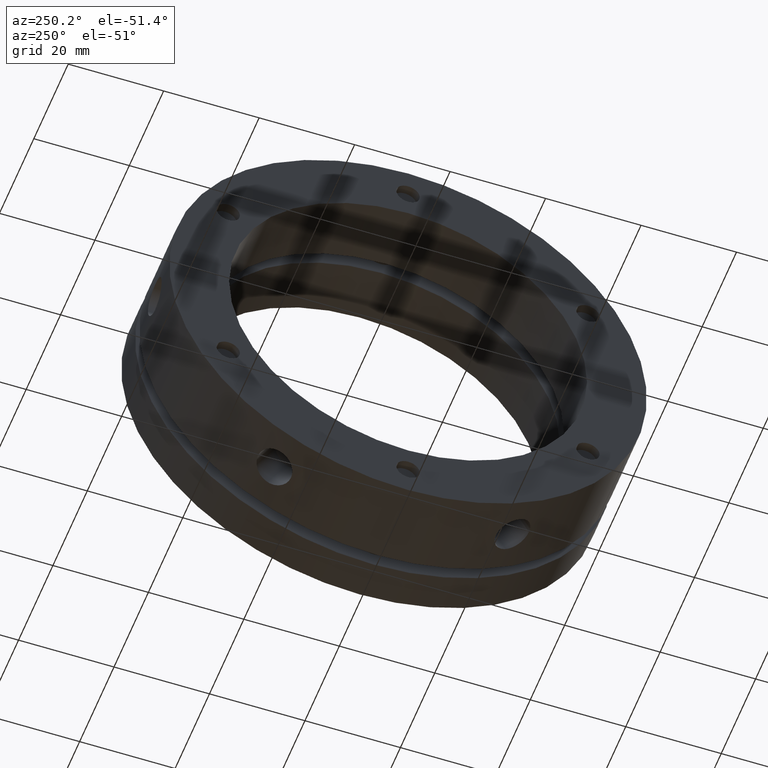
[diagram: clean part render]
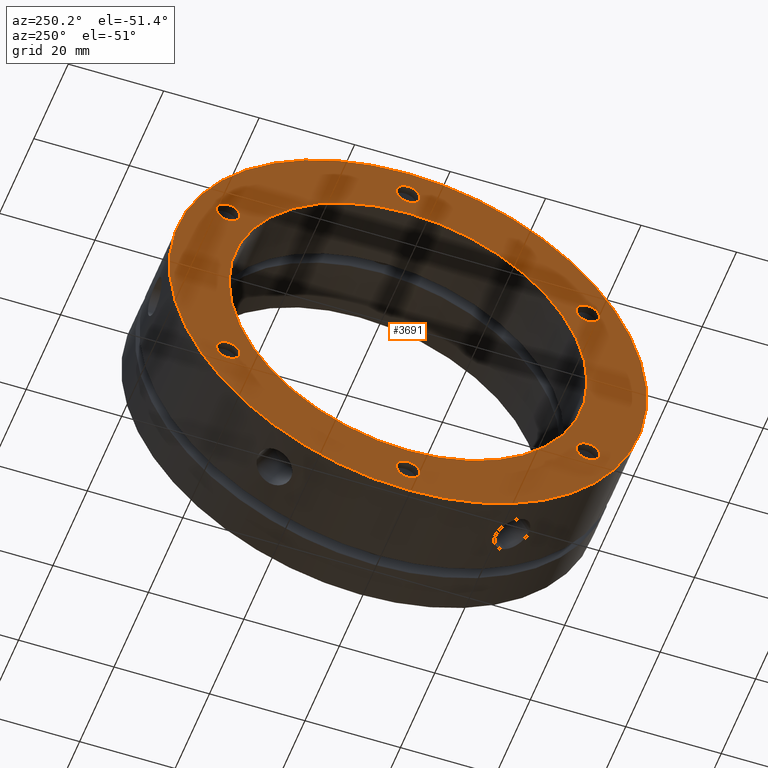
[diagram: same view with one face highlighted and labeled with its STEP entity id]
A machine part, auxiliary view. The second image highlights one B-rep face of the part: STEP entity #3691.
In plain terms, the highlighted planar face has unit normal (-1, 0, 0).
Its self-contained STEP definition (entity closure, byte-faithful):
#94 = EDGE_LOOP ( 'NONE', ( #2743, #2744 ) ) ;
#95 = EDGE_LOOP ( 'NONE', ( #2749, #2750 ) ) ;
#96 = EDGE_LOOP ( 'NONE', ( #2747, #2748 ) ) ;
#97 = EDGE_LOOP ( 'NONE', ( #2745, #2746 ) ) ;
#100 = EDGE_LOOP ( 'NONE', ( #2741, #2742 ) ) ;
#101 = EDGE_LOOP ( 'NONE', ( #2751, #2752 ) ) ;
#102 = EDGE_LOOP ( 'NONE', ( #2753, #2754 ) ) ;
#103 = EDGE_LOOP ( 'NONE', ( #2755, #2756 ) ) ;
#197 = CIRCLE ( 'NONE', #3769, 2.458500000000002600 ) ;
#207 = CIRCLE ( 'NONE', #3774, 2.458500000000002600 ) ;
#209 = CIRCLE ( 'NONE', #3775, 2.458500000000002600 ) ;
#210 = CIRCLE ( 'NONE', #3776, 2.458499999999999000 ) ;
#247 = CIRCLE ( 'NONE', #2464, 50.00000000000000000 ) ;
#284 = CIRCLE ( 'NONE', #3173, 2.458499999999999000 ) ;
#285 = CIRCLE ( 'NONE', #3172, 37.50000000000000000 ) ;
#286 = CIRCLE ( 'NONE', #3175, 2.458500000000002600 ) ;
#287 = CIRCLE ( 'NONE', #2444, 2.458499999999999000 ) ;
#345 = CIRCLE ( 'NONE', #3186, 50.00000000000000000 ) ;
#375 = CIRCLE ( 'NONE', #3198, 2.458499999999999000 ) ;
#384 = CIRCLE ( 'NONE', #3201, 2.458500000000002600 ) ;
#391 = CIRCLE ( 'NONE', #3204, 2.458499999999999000 ) ;
#409 = CIRCLE ( 'NONE', #3208, 2.458499999999999000 ) ;
#416 = CIRCLE ( 'NONE', #3211, 2.458500000000002600 ) ;
#430 = CIRCLE ( 'NONE', #3216, 37.50000000000000000 ) ;
#733 = CARTESIAN_POINT ( 'NONE',  ( -1.387778780781445700E-014, 0.0000000000000000000, 0.0000000000000000000 ) ) ;
#734 = DIRECTION ( 'NONE',  ( 1.000000000000000000, 0.0000000000000000000, 0.0000000000000000000 ) ) ;
#735 = DIRECTION ( 'NONE',  ( 0.0000000000000000000, 0.0000000000000000000, -1.000000000000000000 ) ) ;
#864 = CARTESIAN_POINT ( 'NONE',  ( -1.214306433183765000E-014, 37.67210506462309600, -21.75000000000003600 ) ) ;
#865 = DIRECTION ( 'NONE',  ( 1.000000000000000000, -0.0000000000000000000, -0.0000000000000000000 ) ) ;
#866 = DIRECTION ( 'NONE',  ( 0.0000000000000000000, 0.0000000000000000000, 1.000000000000000000 ) ) ;
#881 = CARTESIAN_POINT ( 'NONE',  ( -1.214306433183765000E-014, -6.661337999999999900E-015, -43.50000000000002800 ) ) ;
#882 = DIRECTION ( 'NONE',  ( 1.000000000000000000, -0.0000000000000000000, -0.0000000000000000000 ) ) ;
#883 = DIRECTION ( 'NONE',  ( 0.0000000000000000000, 0.0000000000000000000, 1.000000000000000000 ) ) ;
#895 = CARTESIAN_POINT ( 'NONE',  ( -1.214306433183765000E-014, -37.67210506462311800, -21.75000000000001100 ) ) ;
#896 = DIRECTION ( 'NONE',  ( 1.000000000000000000, -0.0000000000000000000, -0.0000000000000000000 ) ) ;
#897 = DIRECTION ( 'NONE',  ( 0.0000000000000000000, 0.0000000000000000000, 1.000000000000000000 ) ) ;
#948 = CARTESIAN_POINT ( 'NONE',  ( -1.214306433183765000E-014, -37.67210506462311100, 21.75000000000002100 ) ) ;
#949 = DIRECTION ( 'NONE',  ( 1.000000000000000000, -0.0000000000000000000, -0.0000000000000000000 ) ) ;
#950 = DIRECTION ( 'NONE',  ( 0.0000000000000000000, 0.0000000000000000000, 1.000000000000000000 ) ) ;
#963 = CARTESIAN_POINT ( 'NONE',  ( -1.214306433183765000E-014, 0.0000000000000000000, 43.50000000000002800 ) ) ;
#964 = DIRECTION ( 'NONE',  ( 1.000000000000000000, -0.0000000000000000000, -0.0000000000000000000 ) ) ;
#965 = DIRECTION ( 'NONE',  ( 0.0000000000000000000, 0.0000000000000000000, 1.000000000000000000 ) ) ;
#988 = CARTESIAN_POINT ( 'NONE',  ( -1.040834085586084300E-014, 0.0000000000000000000, 0.0000000000000000000 ) ) ;
#989 = DIRECTION ( 'NONE',  ( 1.000000000000000000, 0.0000000000000000000, 0.0000000000000000000 ) ) ;
#990 = DIRECTION ( 'NONE',  ( 0.0000000000000000000, 0.0000000000000000000, -1.000000000000000000 ) ) ;
#1245 = DIRECTION ( 'NONE',  ( -1.000000000000000000, 0.0000000000000000000, 0.0000000000000000000 ) ) ;
#1247 = CARTESIAN_POINT ( 'NONE',  ( -1.195504000000000000E-014, 43.75000000000000700, 0.0000000000000000000 ) ) ;
#1249 = PLANE ( 'NONE',  #3283 ) ;
#1250 = DIRECTION ( 'NONE',  ( 0.0000000000000000000, 0.0000000000000000000, 1.000000000000000000 ) ) ;
#1737 = FACE_BOUND ( 'NONE', #100, .T. ) ;
#1739 = FACE_BOUND ( 'NONE', #96, .T. ) ;
#1741 = FACE_BOUND ( 'NONE', #97, .T. ) ;
#1743 = FACE_BOUND ( 'NONE', #95, .T. ) ;
#1745 = FACE_BOUND ( 'NONE', #94, .T. ) ;
#1746 = FACE_BOUND ( 'NONE', #101, .T. ) ;
#1747 = FACE_BOUND ( 'NONE', #102, .T. ) ;
#1748 = FACE_OUTER_BOUND ( 'NONE', #103, .T. ) ;
#2444 = AXIS2_PLACEMENT_3D ( 'NONE', #4434, #4435, #4436 ) ;
#2464 = AXIS2_PLACEMENT_3D ( 'NONE', #4270, #4271, #4272 ) ;
#2741 = ORIENTED_EDGE ( 'NONE', *, *, #3142, .T. ) ;
#2742 = ORIENTED_EDGE ( 'NONE', *, *, #3613, .T. ) ;
#2743 = ORIENTED_EDGE ( 'NONE', *, *, #3604, .T. ) ;
#2744 = ORIENTED_EDGE ( 'NONE', *, *, #3144, .T. ) ;
#2745 = ORIENTED_EDGE ( 'NONE', *, *, #3598, .T. ) ;
#2746 = ORIENTED_EDGE ( 'NONE', *, *, #3145, .T. ) ;
#2747 = ORIENTED_EDGE ( 'NONE', *, *, #3589, .T. ) ;
#2748 = ORIENTED_EDGE ( 'NONE', *, *, #3143, .T. ) ;
#2749 = ORIENTED_EDGE ( 'NONE', *, *, #3584, .T. ) ;
#2750 = ORIENTED_EDGE ( 'NONE', *, *, #3082, .T. ) ;
#2751 = ORIENTED_EDGE ( 'NONE', *, *, #3577, .T. ) ;
#2752 = ORIENTED_EDGE ( 'NONE', *, *, #3085, .T. ) ;
#2753 = ORIENTED_EDGE ( 'NONE', *, *, #3074, .T. ) ;
#2754 = ORIENTED_EDGE ( 'NONE', *, *, #3083, .T. ) ;
#2755 = ORIENTED_EDGE ( 'NONE', *, *, #3532, .F. ) ;
#2756 = ORIENTED_EDGE ( 'NONE', *, *, #3108, .F. ) ;
#2793 = VERTEX_POINT ( 'NONE', #3934 ) ;
#2795 = VERTEX_POINT ( 'NONE', #3936 ) ;
#2796 = VERTEX_POINT ( 'NONE', #3937 ) ;
#2817 = VERTEX_POINT ( 'NONE', #3958 ) ;
#2822 = VERTEX_POINT ( 'NONE', #3963 ) ;
#2823 = VERTEX_POINT ( 'NONE', #3964 ) ;
#2826 = VERTEX_POINT ( 'NONE', #3967 ) ;
#2827 = VERTEX_POINT ( 'NONE', #3968 ) ;
#2830 = VERTEX_POINT ( 'NONE', #3971 ) ;
#2831 = VERTEX_POINT ( 'NONE', #3972 ) ;
#2834 = VERTEX_POINT ( 'NONE', #3975 ) ;
#2835 = VERTEX_POINT ( 'NONE', #3976 ) ;
#2838 = VERTEX_POINT ( 'NONE', #3979 ) ;
#2839 = VERTEX_POINT ( 'NONE', #3980 ) ;
#2842 = VERTEX_POINT ( 'NONE', #3983 ) ;
#2843 = VERTEX_POINT ( 'NONE', #3984 ) ;
#3074 = EDGE_CURVE ( 'NONE', #2842, #2843, #197, .T. ) ;
#3082 = EDGE_CURVE ( 'NONE', #2835, #2834, #207, .T. ) ;
#3083 = EDGE_CURVE ( 'NONE', #2843, #2842, #209, .T. ) ;
#3085 = EDGE_CURVE ( 'NONE', #2839, #2838, #210, .T. ) ;
#3108 = EDGE_CURVE ( 'NONE', #2796, #2793, #247, .T. ) ;
#3142 = EDGE_CURVE ( 'NONE', #2795, #2817, #285, .T. ) ;
#3143 = EDGE_CURVE ( 'NONE', #2831, #2830, #284, .T. ) ;
#3144 = EDGE_CURVE ( 'NONE', #2823, #2822, #286, .T. ) ;
#3145 = EDGE_CURVE ( 'NONE', #2827, #2826, #287, .T. ) ;
#3172 = AXIS2_PLACEMENT_3D ( 'NONE', #4425, #4426, #4427 ) ;
#3173 = AXIS2_PLACEMENT_3D ( 'NONE', #4428, #4429, #4430 ) ;
#3175 = AXIS2_PLACEMENT_3D ( 'NONE', #4431, #4432, #4433 ) ;
#3186 = AXIS2_PLACEMENT_3D ( 'NONE', #733, #734, #735 ) ;
#3198 = AXIS2_PLACEMENT_3D ( 'NONE', #864, #865, #866 ) ;
#3201 = AXIS2_PLACEMENT_3D ( 'NONE', #881, #882, #883 ) ;
#3204 = AXIS2_PLACEMENT_3D ( 'NONE', #895, #896, #897 ) ;
#3208 = AXIS2_PLACEMENT_3D ( 'NONE', #948, #949, #950 ) ;
#3211 = AXIS2_PLACEMENT_3D ( 'NONE', #963, #964, #965 ) ;
#3216 = AXIS2_PLACEMENT_3D ( 'NONE', #988, #989, #990 ) ;
#3283 = AXIS2_PLACEMENT_3D ( 'NONE', #1247, #1245, #1250 ) ;
#3532 = EDGE_CURVE ( 'NONE', #2793, #2796, #345, .T. ) ;
#3577 = EDGE_CURVE ( 'NONE', #2838, #2839, #375, .T. ) ;
#3584 = EDGE_CURVE ( 'NONE', #2834, #2835, #384, .T. ) ;
#3589 = EDGE_CURVE ( 'NONE', #2830, #2831, #391, .T. ) ;
#3598 = EDGE_CURVE ( 'NONE', #2826, #2827, #409, .T. ) ;
#3604 = EDGE_CURVE ( 'NONE', #2822, #2823, #416, .T. ) ;
#3613 = EDGE_CURVE ( 'NONE', #2817, #2795, #430, .T. ) ;
#3691 = ADVANCED_FACE ( 'NONE', ( #1737, #1745, #1741, #1739, #1743, #1746, #1747, #1748 ), #1249, .T. ) ;
#3769 = AXIS2_PLACEMENT_3D ( 'NONE', #4147, #4148, #4149 ) ;
#3774 = AXIS2_PLACEMENT_3D ( 'NONE', #4171, #4172, #4173 ) ;
#3775 = AXIS2_PLACEMENT_3D ( 'NONE', #4174, #4175, #4176 ) ;
#3776 = AXIS2_PLACEMENT_3D ( 'NONE', #4181, #4182, #4183 ) ;
#3934 = CARTESIAN_POINT ( 'NONE',  ( -1.387778780781445700E-014, 0.0000000000000000000, -50.00000000000000000 ) ) ;
#3936 = CARTESIAN_POINT ( 'NONE',  ( -1.040834085586084300E-014, 0.0000000000000000000, -37.50000000000000000 ) ) ;
#3937 = CARTESIAN_POINT ( 'NONE',  ( -1.387778780781445700E-014, 6.123233995736766100E-015, 50.00000000000000000 ) ) ;
#3958 = CARTESIAN_POINT ( 'NONE',  ( -1.040834085586084300E-014, 4.592425496802574400E-015, 37.50000000000000000 ) ) ;
#3963 = CARTESIAN_POINT ( 'NONE',  ( -1.214306433183765000E-014, 0.0000000000000000000, 45.95850000000003600 ) ) ;
#3964 = CARTESIAN_POINT ( 'NONE',  ( -1.214306433183765000E-014, 3.010794155703764200E-016, 41.04150000000002800 ) ) ;
#3967 = CARTESIAN_POINT ( 'NONE',  ( -1.214306433183765000E-014, -37.67210506462311100, 24.20850000000002200 ) ) ;
#3968 = CARTESIAN_POINT ( 'NONE',  ( -1.214306433183765000E-014, -37.67210506462311100, 19.29150000000002400 ) ) ;
#3971 = CARTESIAN_POINT ( 'NONE',  ( -1.214306433183765000E-014, -37.67210506462311800, -19.29150000000001000 ) ) ;
#3972 = CARTESIAN_POINT ( 'NONE',  ( -1.214306433183765000E-014, -37.67210506462311800, -24.20850000000000800 ) ) ;
#3975 = CARTESIAN_POINT ( 'NONE',  ( -1.214306433183765000E-014, -6.661337999999999900E-015, -41.04150000000002800 ) ) ;
#3976 = CARTESIAN_POINT ( 'NONE',  ( -1.214306433183765000E-014, -6.360258584429623600E-015, -45.95850000000003600 ) ) ;
#3979 = CARTESIAN_POINT ( 'NONE',  ( -1.214306433183765000E-014, 37.67210506462309600, -19.29150000000003800 ) ) ;
#3980 = CARTESIAN_POINT ( 'NONE',  ( -1.214306433183765000E-014, 37.67210506462309600, -24.20850000000003600 ) ) ;
#3983 = CARTESIAN_POINT ( 'NONE',  ( -1.214306433183765000E-014, 37.67210506462313200, 24.20849999999998700 ) ) ;
#3984 = CARTESIAN_POINT ( 'NONE',  ( -1.214306433183765000E-014, 37.67210506462313200, 19.29149999999998100 ) ) ;
#4147 = CARTESIAN_POINT ( 'NONE',  ( -1.214306433183765000E-014, 37.67210506462313200, 21.74999999999998600 ) ) ;
#4148 = DIRECTION ( 'NONE',  ( 1.000000000000000000, -0.0000000000000000000, -0.0000000000000000000 ) ) ;
#4149 = DIRECTION ( 'NONE',  ( 0.0000000000000000000, 0.0000000000000000000, 1.000000000000000000 ) ) ;
#4171 = CARTESIAN_POINT ( 'NONE',  ( -1.214306433183765000E-014, -6.661337999999999900E-015, -43.50000000000002800 ) ) ;
#4172 = DIRECTION ( 'NONE',  ( 1.000000000000000000, -0.0000000000000000000, -0.0000000000000000000 ) ) ;
#4173 = DIRECTION ( 'NONE',  ( 0.0000000000000000000, 0.0000000000000000000, 1.000000000000000000 ) ) ;
#4174 = CARTESIAN_POINT ( 'NONE',  ( -1.214306433183765000E-014, 37.67210506462313200, 21.74999999999998600 ) ) ;
#4175 = DIRECTION ( 'NONE',  ( 1.000000000000000000, -0.0000000000000000000, -0.0000000000000000000 ) ) ;
#4176 = DIRECTION ( 'NONE',  ( 0.0000000000000000000, 0.0000000000000000000, 1.000000000000000000 ) ) ;
#4181 = CARTESIAN_POINT ( 'NONE',  ( -1.214306433183765000E-014, 37.67210506462309600, -21.75000000000003600 ) ) ;
#4182 = DIRECTION ( 'NONE',  ( 1.000000000000000000, -0.0000000000000000000, -0.0000000000000000000 ) ) ;
#4183 = DIRECTION ( 'NONE',  ( 0.0000000000000000000, 0.0000000000000000000, 1.000000000000000000 ) ) ;
#4270 = CARTESIAN_POINT ( 'NONE',  ( -1.387778780781445700E-014, 0.0000000000000000000, 0.0000000000000000000 ) ) ;
#4271 = DIRECTION ( 'NONE',  ( 1.000000000000000000, 0.0000000000000000000, 0.0000000000000000000 ) ) ;
#4272 = DIRECTION ( 'NONE',  ( 0.0000000000000000000, 0.0000000000000000000, -1.000000000000000000 ) ) ;
#4425 = CARTESIAN_POINT ( 'NONE',  ( -1.040834085586084300E-014, 0.0000000000000000000, 0.0000000000000000000 ) ) ;
#4426 = DIRECTION ( 'NONE',  ( 1.000000000000000000, 0.0000000000000000000, 0.0000000000000000000 ) ) ;
#4427 = DIRECTION ( 'NONE',  ( 0.0000000000000000000, 0.0000000000000000000, -1.000000000000000000 ) ) ;
#4428 = CARTESIAN_POINT ( 'NONE',  ( -1.214306433183765000E-014, -37.67210506462311800, -21.75000000000001100 ) ) ;
#4429 = DIRECTION ( 'NONE',  ( 1.000000000000000000, -0.0000000000000000000, -0.0000000000000000000 ) ) ;
#4430 = DIRECTION ( 'NONE',  ( 0.0000000000000000000, 0.0000000000000000000, 1.000000000000000000 ) ) ;
#4431 = CARTESIAN_POINT ( 'NONE',  ( -1.214306433183765000E-014, 0.0000000000000000000, 43.50000000000002800 ) ) ;
#4432 = DIRECTION ( 'NONE',  ( 1.000000000000000000, -0.0000000000000000000, -0.0000000000000000000 ) ) ;
#4433 = DIRECTION ( 'NONE',  ( 0.0000000000000000000, 0.0000000000000000000, 1.000000000000000000 ) ) ;
#4434 = CARTESIAN_POINT ( 'NONE',  ( -1.214306433183765000E-014, -37.67210506462311100, 21.75000000000002100 ) ) ;
#4435 = DIRECTION ( 'NONE',  ( 1.000000000000000000, -0.0000000000000000000, -0.0000000000000000000 ) ) ;
#4436 = DIRECTION ( 'NONE',  ( 0.0000000000000000000, 0.0000000000000000000, 1.000000000000000000 ) ) ;